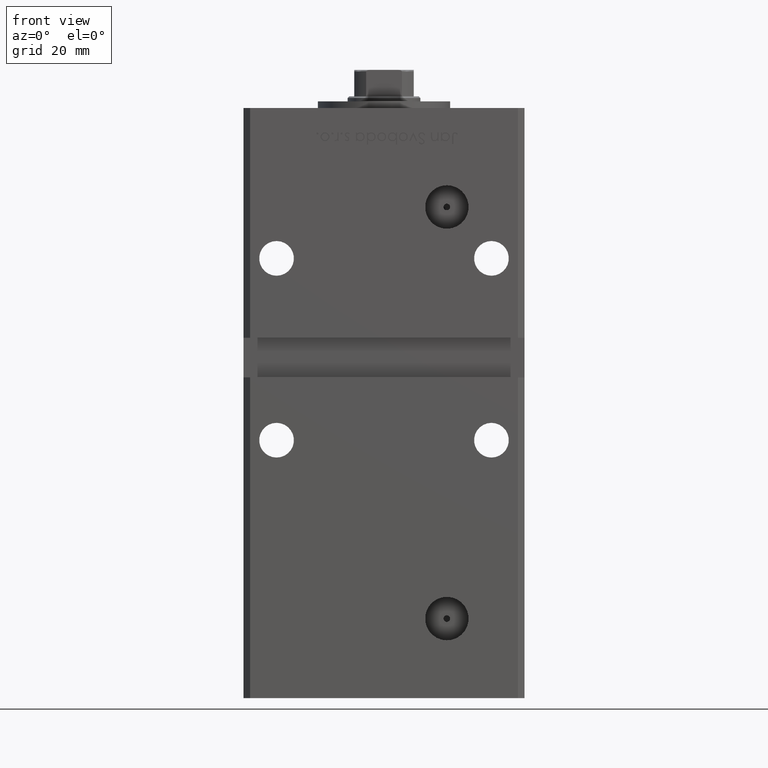
[diagram: clean part render]
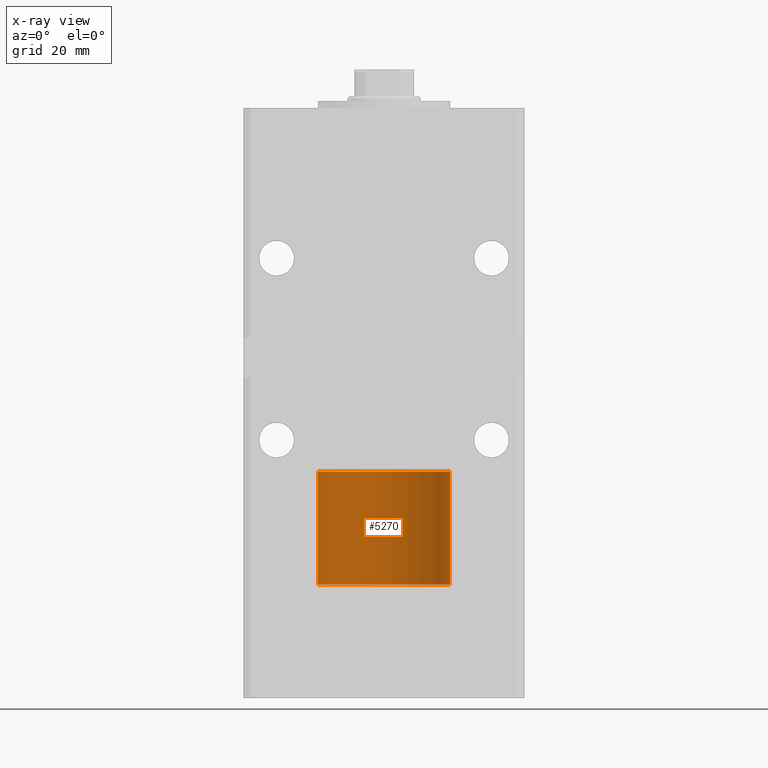
[diagram: x-ray — body ghosted, one internal face saturated and labeled with its STEP entity id]
A machine part, front view, then the same camera in x-ray: the body is ghosted and one INTERNAL B-rep face — a face not visible from any outside direction — is saturated and labeled: STEP entity #5270.
In plain terms, the highlighted cylindrical surface (partial cylindrical patch) has radius 20 mm, axis along (-0, -0, -1).
Its self-contained STEP definition (entity closure, byte-faithful):
#508 = DIRECTION ( 'NONE',  ( 0.000000000000000000, 0.000000000000000000, 1.000000000000000000 ) ) ;
#1145 = DIRECTION ( 'NONE',  ( -1.000000000000000000, 0.000000000000000000, 0.000000000000000000 ) ) ;
#2070 = ORIENTED_EDGE ( 'NONE', *, *, #49400, .T. ) ;
#3123 = ORIENTED_EDGE ( 'NONE', *, *, #23212, .F. ) ;
#3901 = EDGE_LOOP ( 'NONE', ( #16043, #2070, #6351, #3123 ) ) ;
#5270 = ADVANCED_FACE ( 'NONE', ( #29919 ), #33959, .T. ) ;
#6351 = ORIENTED_EDGE ( 'NONE', *, *, #11958, .T. ) ;
#8555 = CARTESIAN_POINT ( 'NONE',  ( 0.000000000000000000, 0.000000000000000000, 34.25000000000000000 ) ) ;
#8622 = VECTOR ( 'NONE', #11555, 1000.000000000000000 ) ;
#9462 = DIRECTION ( 'NONE',  ( -0.000000000000000000, -0.000000000000000000, -1.000000000000000000 ) ) ;
#11555 = DIRECTION ( 'NONE',  ( -0.000000000000000000, -0.000000000000000000, -1.000000000000000000 ) ) ;
#11958 = EDGE_CURVE ( 'NONE', #23653, #50979, #28955, .T. ) ;
#12867 = DIRECTION ( 'NONE',  ( 1.000000000000000000, 0.000000000000000000, 0.000000000000000000 ) ) ;
#12900 = CARTESIAN_POINT ( 'NONE',  ( -20.00000000000000000, 0.000000000000000000, 0.000000000000000000 ) ) ;
#14435 = EDGE_CURVE ( 'NONE', #48604, #51603, #47965, .T. ) ;
#16043 = ORIENTED_EDGE ( 'NONE', *, *, #14435, .F. ) ;
#18745 = CARTESIAN_POINT ( 'NONE',  ( -20.00000000000000000, 0.000000000000000000, 34.25000000000000000 ) ) ;
#20948 = CARTESIAN_POINT ( 'NONE',  ( 0.000000000000000000, 0.000000000000000000, 0.000000000000000000 ) ) ;
#21461 = LINE ( 'NONE', #21737, #30973 ) ;
#21737 = CARTESIAN_POINT ( 'NONE',  ( -20.00000000000000000, 0.000000000000000000, 34.25000000000000000 ) ) ;
#23212 = EDGE_CURVE ( 'NONE', #51603, #50979, #21461, .T. ) ;
#23653 = VERTEX_POINT ( 'NONE', #46318 ) ;
#28229 = CARTESIAN_POINT ( 'NONE',  ( 20.00000000000000000, 2.449293598294706513E-15, 34.25000000000000000 ) ) ;
#28955 = CIRCLE ( 'NONE', #38540, 20.00000000000000000 ) ;
#29463 = AXIS2_PLACEMENT_3D ( 'NONE', #50918, #9462, #1145 ) ;
#29919 = FACE_OUTER_BOUND ( 'NONE', #3901, .T. ) ;
#30746 = AXIS2_PLACEMENT_3D ( 'NONE', #8555, #37359, #41400 ) ;
#30973 = VECTOR ( 'NONE', #42733, 1000.000000000000000 ) ;
#33959 = CYLINDRICAL_SURFACE ( 'NONE', #29463, 20.00000000000000000 ) ;
#37359 = DIRECTION ( 'NONE',  ( 0.000000000000000000, 0.000000000000000000, 1.000000000000000000 ) ) ;
#38540 = AXIS2_PLACEMENT_3D ( 'NONE', #20948, #508, #12867 ) ;
#40878 = CARTESIAN_POINT ( 'NONE',  ( 20.00000000000000000, 2.449293598294706513E-15, 34.25000000000000000 ) ) ;
#41400 = DIRECTION ( 'NONE',  ( 1.000000000000000000, 0.000000000000000000, 0.000000000000000000 ) ) ;
#42733 = DIRECTION ( 'NONE',  ( -0.000000000000000000, -0.000000000000000000, -1.000000000000000000 ) ) ;
#44398 = LINE ( 'NONE', #40878, #8622 ) ;
#46318 = CARTESIAN_POINT ( 'NONE',  ( 20.00000000000000000, 2.449293598294706513E-15, 0.000000000000000000 ) ) ;
#47965 = CIRCLE ( 'NONE', #30746, 20.00000000000000000 ) ;
#48604 = VERTEX_POINT ( 'NONE', #28229 ) ;
#49400 = EDGE_CURVE ( 'NONE', #48604, #23653, #44398, .T. ) ;
#50918 = CARTESIAN_POINT ( 'NONE',  ( 0.000000000000000000, 0.000000000000000000, 34.25000000000000000 ) ) ;
#50979 = VERTEX_POINT ( 'NONE', #12900 ) ;
#51603 = VERTEX_POINT ( 'NONE', #18745 ) ;